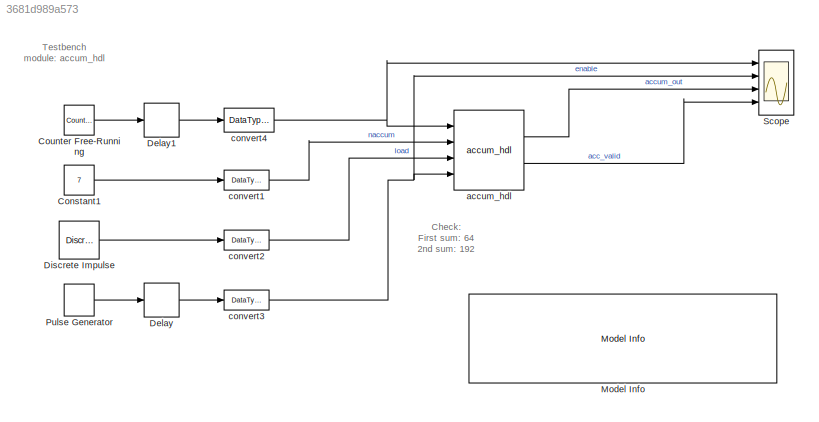
MODEL slx_3681d989a573
KIND model
CONFIG AbsTol = auto
CONFIG EnableMultiTasking = off
CONFIG FixedStep = auto
CONFIG MaxStep = auto
CONFIG MinStep = auto
CONFIG RelTol = 1e-3
CONFIG SampleTimeConstraint = Unconstrained
CONFIG Solver = FixedStepDiscrete
CONFIG SolverName = FixedStepDiscrete
CONFIG StartTime = 0.0
CONFIG StopTime = 100
BLOCK [Constant] Constant1
  SampleTime = -1
  Value = 7
BLOCK [Reference] Counter Free-Running  REF=simulink/Sources/Counter
Free-Running
  Ports = [0, 1]
  SourceBlock = simulink/Sources/Counter\nFree-Running
  SourceProductBaseCode = SL
  SourceProductName = Simulink
  SourceType = Counter Free-Running
BLOCK [Delay] Delay
  DelayLength = 6
  InitialCondition = 0
  InputPortMap = u0
  Ports = [1, 1]
BLOCK [Delay] Delay1
  DelayLength = 5
  InitialCondition = 0
  InputPortMap = u0
  Ports = [1, 1]
BLOCK [Reference] Discrete Impulse  REF=dspsrcs4/Discrete 
Impulse
  Ports = [0, 1]
  SourceBlock = dspsrcs4/Discrete \nImpulse
  SourceProductBaseCode = DS
  SourceProductName = DSP System Toolbox
  SourceType = Discrete Impulse
BLOCK [Reference] Model Info  REF=simulink/Model-Wide
Utilities/Model Info
  Ports = []
  SourceBlock = simulink/Model-Wide\nUtilities/Model Info
  SourceProductBaseCode = SL
  SourceProductName = Simulink
  SourceType = CMBlock
BLOCK [DiscretePulseGenerator] Pulse Generator
  Ports = [0, 1]
BLOCK [Scope] Scope
  Floating = off
  NumInputPorts = 4
  Ports = [4]
  ScopeSpecificationString = Simulink.scopes.TimeScopeBlockCfg('CurrentConfiguration', extmgr.ConfigurationSet(extmgr.Configuration('Core','General UI',true),extmgr.Configuration('Core','Source UI',true),extmgr.Configuration('Sources','WiredSimulink',true),extmgr.Configuration('Visuals','Time Domain',true,'SerializedDisplays',{struct('MinYLimReal','-11.875','MaxYLimReal','106.875','YLabelReal','','MinYLimMag','0.00000','MaxYL...<+3407ch>
BLOCK [Reference] accum_hdl  REF=lib_dsphdlcontrol_v1/accum_hdl  (lib defined in slx_169a934beb0a)
  Ports = [4, 2]
  SourceBlock = lib_dsphdlcontrol_v1/accum_hdl
  SourceProductName = DSPHDL Library
  SourceType = HDL Accumulator
BLOCK [DataTypeConversion] convert1
  OutDataTypeStr = fixdt(0,8,0)
  RndMeth = Floor
  SaturateOnIntegerOverflow = off
BLOCK [DataTypeConversion] convert2
  RndMeth = Floor
  SaturateOnIntegerOverflow = off
BLOCK [DataTypeConversion] convert3
  RndMeth = Floor
  SaturateOnIntegerOverflow = off
BLOCK [DataTypeConversion] convert4
  OutDataTypeStr = fixdt(1,16,2)
  RndMeth = Floor
ANNOTATION (root): Check: First sum: 64 2nd sum: 192
ANNOTATION (root): Testbench module: accum_hdl
LINE Constant1:1 -> convert1:1
LINE Counter Free-Running:1 -> Delay1:1
LINE Delay1:1 -> convert4:1
LINE Delay:1 -> convert3:1
LINE Discrete Impulse:1 -> convert2:1
LINE Pulse Generator:1 -> Delay:1
LINE accum_hdl:1 -> Scope:3
LINE accum_hdl:2 -> Scope:4
LINE convert1:1 -> accum_hdl:2
LINE convert2:1 -> accum_hdl:3
NET convert3:1 -> Scope:2, accum_hdl:4
NET convert4:1 -> Scope:1, accum_hdl:1
note: NET lines group one-source signal fan-out (src -> all destinations, sorted); 1:1 wires keep LINE
